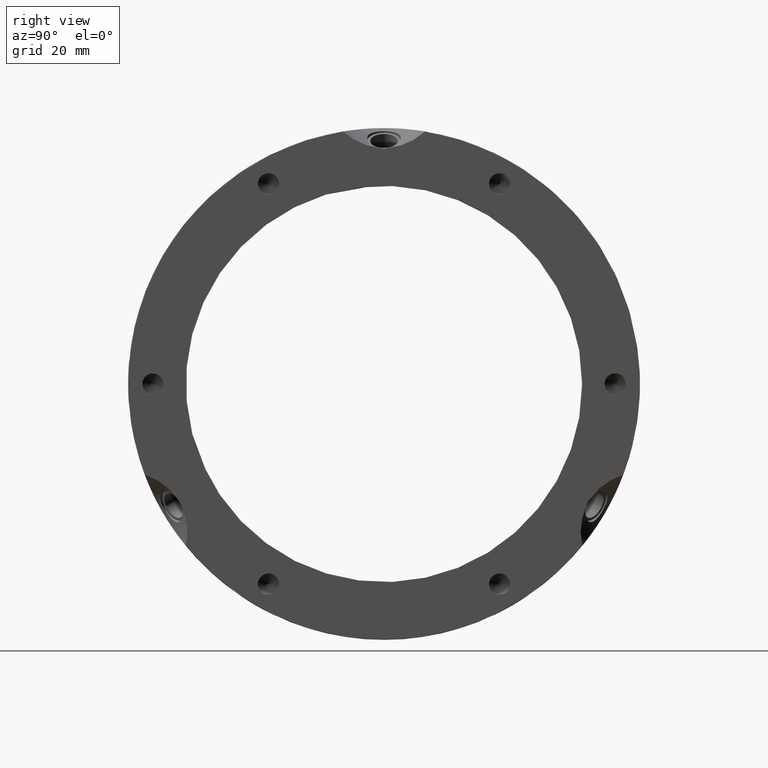
[diagram: clean part render]
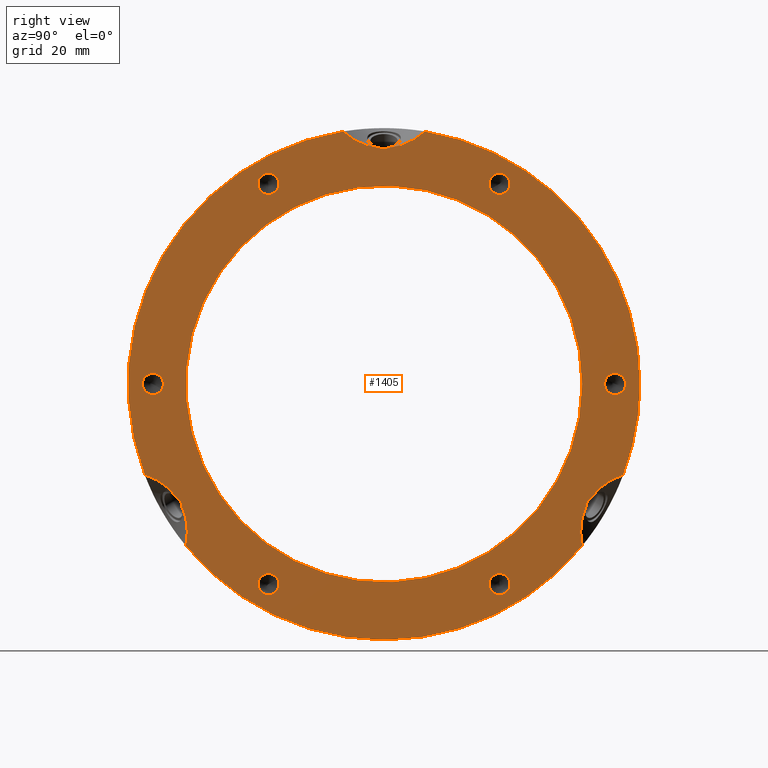
[diagram: same view with one face highlighted and labeled with its STEP entity id]
A machine part, right view. The second image highlights one B-rep face of the part: STEP entity #1405.
In plain terms, the highlighted planar face has unit normal (1, 0, 0).
Its self-contained STEP definition (entity closure, byte-faithful):
#165=CARTESIAN_POINT('',(31.999999999999986,32.228718707889811,59.021778264910708));
#166=VERTEX_POINT('',#165);
#167=CARTESIAN_POINT('',(31.999999999999986,35.000000000000014,60.621778264910716));
#168=DIRECTION('',(-1.0,0.0,0.0));
#169=DIRECTION('',(0.0,-0.866025403784439,-0.499999999999999));
#170=AXIS2_PLACEMENT_3D('',#167,#168,#169);
#171=CIRCLE('',#170,3.200000000000001);
#172=EDGE_CURVE('',#166,#166,#171,.T.);
#277=CARTESIAN_POINT('',(31.999999999999986,67.228718707889797,1.60000000000001));
#278=VERTEX_POINT('',#277);
#279=CARTESIAN_POINT('',(31.999999999999986,70.000000000000014,4.440892E-015));
#280=DIRECTION('',(-1.0,0.0,0.0));
#281=DIRECTION('',(0.0,-0.866025403784438,0.5));
#282=AXIS2_PLACEMENT_3D('',#279,#280,#281);
#283=CIRCLE('',#282,3.200000000000001);
#284=EDGE_CURVE('',#278,#278,#283,.T.);
#389=CARTESIAN_POINT('',(31.999999999999986,35.000000000000028,-57.421778264910692));
#390=VERTEX_POINT('',#389);
#391=CARTESIAN_POINT('',(31.999999999999986,35.000000000000028,-60.621778264910702));
#392=DIRECTION('',(-1.0,0.0,0.0));
#393=DIRECTION('',(0.0,0.0,1.0));
#394=AXIS2_PLACEMENT_3D('',#391,#392,#393);
#395=CIRCLE('',#394,3.200000000000001);
#396=EDGE_CURVE('',#390,#390,#395,.T.);
#501=CARTESIAN_POINT('',(31.999999999999986,-32.228718707889769,-59.021778264910722));
#502=VERTEX_POINT('',#501);
#503=CARTESIAN_POINT('',(31.999999999999986,-34.999999999999986,-60.621778264910731));
#504=DIRECTION('',(-1.0,0.0,0.0));
#505=DIRECTION('',(0.0,0.866025403784439,0.5));
#506=AXIS2_PLACEMENT_3D('',#503,#504,#505);
#507=CIRCLE('',#506,3.200000000000001);
#508=EDGE_CURVE('',#502,#502,#507,.T.);
#613=CARTESIAN_POINT('',(31.999999999999986,-67.228718707889797,-1.600000000000041));
#614=VERTEX_POINT('',#613);
#615=CARTESIAN_POINT('',(31.999999999999986,-70.000000000000014,-3.552714E-014));
#616=DIRECTION('',(-1.0,0.0,0.0));
#617=DIRECTION('',(0.0,0.866025403784439,-0.5));
#618=AXIS2_PLACEMENT_3D('',#615,#616,#617);
#619=CIRCLE('',#618,3.200000000000001);
#620=EDGE_CURVE('',#614,#614,#619,.T.);
#650=CARTESIAN_POINT('',(31.999999999999986,-35.000000000000043,57.421778264910685));
#651=VERTEX_POINT('',#650);
#652=CARTESIAN_POINT('',(31.999999999999986,-35.000000000000043,60.621778264910688));
#653=DIRECTION('',(-1.0,0.0,0.0));
#654=DIRECTION('',(0.0,0.0,-1.0));
#655=AXIS2_PLACEMENT_3D('',#652,#653,#654);
#656=CIRCLE('',#655,3.200000000000001);
#657=EDGE_CURVE('',#651,#651,#656,.T.);
#745=CARTESIAN_POINT('',(31.999999999986546,62.619972033554454,-34.638536167955884));
#746=VERTEX_POINT('',#745);
#747=CARTESIAN_POINT('',(31.999999999999986,72.461374013148685,-27.488166110648056));
#748=VERTEX_POINT('',#747);
#749=CARTESIAN_POINT('',(31.999999999999986,81.920816370587346,-47.297005383792559));
#750=DIRECTION('',(-1.0,-4.163336E-017,2.403703E-017));
#751=DIRECTION('',(4.807407E-017,-0.866025403784438,0.5));
#752=AXIS2_PLACEMENT_3D('',#749,#750,#751);
#753=ELLIPSE('',#752,23.094010767585022,19.999999999999996);
#754=EDGE_CURVE('',#746,#748,#753,.T.);
#756=CARTESIAN_POINT('',(31.999999999986546,61.30783828813307,-36.911218481351355));
#757=VERTEX_POINT('',#756);
#796=CARTESIAN_POINT('',(31.999999999999989,60.036137161841992,-49.009307633188357));
#797=VERTEX_POINT('',#796);
#798=CARTESIAN_POINT('',(31.999999999999986,81.920816370587346,-47.297005383792559));
#799=DIRECTION('',(-1.0,-4.163336E-017,2.403703E-017));
#800=DIRECTION('',(4.807407E-017,-0.866025403784438,0.5));
#801=AXIS2_PLACEMENT_3D('',#798,#799,#800);
#802=ELLIPSE('',#801,23.094010767585022,19.999999999999996);
#803=EDGE_CURVE('',#797,#757,#802,.T.);
#892=CARTESIAN_POINT('',(31.999999999999986,70.499999999999886,-40.703193977868594));
#893=DIRECTION('',(-1.0,0.0,0.0));
#894=DIRECTION('',(0.0,-0.866025403784438,0.5));
#895=AXIS2_PLACEMENT_3D('',#892,#893,#894);
#896=ELLIPSE('',#895,10.200000000000008,5.100000000000011);
#897=EDGE_CURVE('',#757,#746,#896,.T.);
#931=CARTESIAN_POINT('',(31.999999999986546,-61.307838288133098,-36.911218481351312));
#932=VERTEX_POINT('',#931);
#933=CARTESIAN_POINT('',(31.999999999999986,-60.036137161842049,-49.009307633188286));
#934=VERTEX_POINT('',#933);
#935=CARTESIAN_POINT('',(31.999999999999986,-81.920816370587374,-47.297005383792495));
#936=DIRECTION('',(-1.0,4.163336E-017,2.403703E-017));
#937=DIRECTION('',(4.807407E-017,0.866025403784439,0.5));
#938=AXIS2_PLACEMENT_3D('',#935,#936,#937);
#939=ELLIPSE('',#938,23.094010767585022,19.999999999999996);
#940=EDGE_CURVE('',#932,#934,#939,.T.);
#942=CARTESIAN_POINT('',(31.999999999986546,-62.619972033554482,-34.638536167955834));
#943=VERTEX_POINT('',#942);
#982=CARTESIAN_POINT('',(31.999999999999986,-72.461374013148713,-27.488166110648017));
#983=VERTEX_POINT('',#982);
#984=CARTESIAN_POINT('',(31.999999999999986,-81.920816370587374,-47.297005383792495));
#985=DIRECTION('',(-1.0,4.163336E-017,2.403703E-017));
#986=DIRECTION('',(4.807407E-017,0.866025403784439,0.5));
#987=AXIS2_PLACEMENT_3D('',#984,#985,#986);
#988=ELLIPSE('',#987,23.094010767585022,19.999999999999996);
#989=EDGE_CURVE('',#983,#943,#988,.T.);
#1078=CARTESIAN_POINT('',(31.999999999999986,-70.499999999999915,-40.703193977868544));
#1079=DIRECTION('',(-1.0,0.0,0.0));
#1080=DIRECTION('',(0.0,0.866025403784439,0.5));
#1081=AXIS2_PLACEMENT_3D('',#1078,#1079,#1080);
#1082=ELLIPSE('',#1081,10.200000000000006,5.10000000000001);
#1083=EDGE_CURVE('',#943,#932,#1082,.T.);
#1153=CARTESIAN_POINT('',(31.999999999999986,0.0,0.0));
#1154=DIRECTION('',(1.0,0.0,0.0));
#1155=DIRECTION('',(0.0,1.0,0.0));
#1156=AXIS2_PLACEMENT_3D('',#1153,#1154,#1155);
#1157=CIRCLE('',#1156,77.5);
#1158=EDGE_CURVE('',#934,#797,#1157,.T.);
#1161=CARTESIAN_POINT('',(31.999999999999986,-12.425236851306668,76.497473743836352));
#1162=VERTEX_POINT('',#1161);
#1163=CARTESIAN_POINT('',(31.999999999999986,0.0,0.0));
#1164=DIRECTION('',(1.0,0.0,0.0));
#1165=DIRECTION('',(0.0,1.0,0.0));
#1166=AXIS2_PLACEMENT_3D('',#1163,#1164,#1165);
#1167=CIRCLE('',#1166,77.5);
#1168=EDGE_CURVE('',#1162,#983,#1167,.T.);
#1170=CARTESIAN_POINT('',(31.999999999999986,12.425236851306668,76.497473743836352));
#1171=VERTEX_POINT('',#1170);
#1197=CARTESIAN_POINT('',(31.999999999999986,0.0,0.0));
#1198=DIRECTION('',(1.0,0.0,0.0));
#1199=DIRECTION('',(0.0,1.0,0.0));
#1200=AXIS2_PLACEMENT_3D('',#1197,#1198,#1199);
#1201=CIRCLE('',#1200,77.5);
#1202=EDGE_CURVE('',#748,#1171,#1201,.T.);
#1270=CARTESIAN_POINT('',(31.999999999999986,-1.312133745285424,71.54975464928134));
#1271=VERTEX_POINT('',#1270);
#1272=CARTESIAN_POINT('',(31.999999999999986,1.312133745285424,71.54975464928134));
#1273=VERTEX_POINT('',#1272);
#1312=CARTESIAN_POINT('',(31.999999999999986,0.0,81.406387955737102));
#1313=DIRECTION('',(-1.0,0.0,0.0));
#1314=DIRECTION('',(0.0,0.0,-1.0));
#1315=AXIS2_PLACEMENT_3D('',#1312,#1313,#1314);
#1316=ELLIPSE('',#1315,10.200000000000006,5.10000000000001);
#1317=EDGE_CURVE('',#1273,#1271,#1316,.T.);
#1345=CARTESIAN_POINT('',(31.999999999999986,68.75,0.0));
#1346=DIRECTION('',(1.0,0.0,0.0));
#1347=DIRECTION('',(0.0,0.0,-1.0));
#1348=AXIS2_PLACEMENT_3D('',#1345,#1346,#1347);
#1349=PLANE('',#1348);
#1350=ORIENTED_EDGE('',*,*,#754,.T.);
#1351=ORIENTED_EDGE('',*,*,#1202,.T.);
#1352=CARTESIAN_POINT('',(31.999999999999986,0.0,94.594010767585033));
#1353=DIRECTION('',(-1.0,0.0,0.0));
#1354=DIRECTION('',(0.0,0.0,-1.0));
#1355=AXIS2_PLACEMENT_3D('',#1352,#1353,#1354);
#1356=ELLIPSE('',#1355,23.094010767585019,19.999999999999989);
#1357=EDGE_CURVE('',#1171,#1273,#1356,.T.);
#1358=ORIENTED_EDGE('',*,*,#1357,.T.);
#1359=ORIENTED_EDGE('',*,*,#1317,.T.);
#1360=CARTESIAN_POINT('',(31.999999999999986,0.0,94.594010767585033));
#1361=DIRECTION('',(-1.0,0.0,0.0));
#1362=DIRECTION('',(0.0,0.0,-1.0));
#1363=AXIS2_PLACEMENT_3D('',#1360,#1361,#1362);
#1364=ELLIPSE('',#1363,23.094010767585019,19.999999999999989);
#1365=EDGE_CURVE('',#1271,#1162,#1364,.T.);
#1366=ORIENTED_EDGE('',*,*,#1365,.T.);
#1367=ORIENTED_EDGE('',*,*,#1168,.T.);
#1368=ORIENTED_EDGE('',*,*,#989,.T.);
#1369=ORIENTED_EDGE('',*,*,#1083,.T.);
#1370=ORIENTED_EDGE('',*,*,#940,.T.);
#1371=ORIENTED_EDGE('',*,*,#1158,.T.);
#1372=ORIENTED_EDGE('',*,*,#803,.T.);
#1373=ORIENTED_EDGE('',*,*,#897,.T.);
#1374=EDGE_LOOP('',(#1350,#1351,#1358,#1359,#1366,#1367,#1368,#1369,#1370,#1371,#1372,#1373));
#1375=FACE_OUTER_BOUND('',#1374,.T.);
#1376=ORIENTED_EDGE('',*,*,#172,.T.);
#1377=EDGE_LOOP('',(#1376));
#1378=FACE_BOUND('',#1377,.T.);
#1379=ORIENTED_EDGE('',*,*,#284,.T.);
#1380=EDGE_LOOP('',(#1379));
#1381=FACE_BOUND('',#1380,.T.);
#1382=ORIENTED_EDGE('',*,*,#396,.T.);
#1383=EDGE_LOOP('',(#1382));
#1384=FACE_BOUND('',#1383,.T.);
#1385=ORIENTED_EDGE('',*,*,#508,.T.);
#1386=EDGE_LOOP('',(#1385));
#1387=FACE_BOUND('',#1386,.T.);
#1388=ORIENTED_EDGE('',*,*,#620,.T.);
#1389=EDGE_LOOP('',(#1388));
#1390=FACE_BOUND('',#1389,.T.);
#1391=ORIENTED_EDGE('',*,*,#657,.T.);
#1392=EDGE_LOOP('',(#1391));
#1393=FACE_BOUND('',#1392,.T.);
#1394=CARTESIAN_POINT('',(31.999999999999989,60.0,0.0));
#1395=VERTEX_POINT('',#1394);
#1396=CARTESIAN_POINT('',(31.999999999999989,0.0,0.0));
#1397=DIRECTION('',(1.0,0.0,0.0));
#1398=DIRECTION('',(0.0,1.0,0.0));
#1399=AXIS2_PLACEMENT_3D('',#1396,#1397,#1398);
#1400=CIRCLE('',#1399,60.0);
#1401=EDGE_CURVE('',#1395,#1395,#1400,.T.);
#1402=ORIENTED_EDGE('',*,*,#1401,.F.);
#1403=EDGE_LOOP('',(#1402));
#1404=FACE_BOUND('',#1403,.T.);
#1405=ADVANCED_FACE('',(#1375,#1378,#1381,#1384,#1387,#1390,#1393,#1404),#1349,.T.);